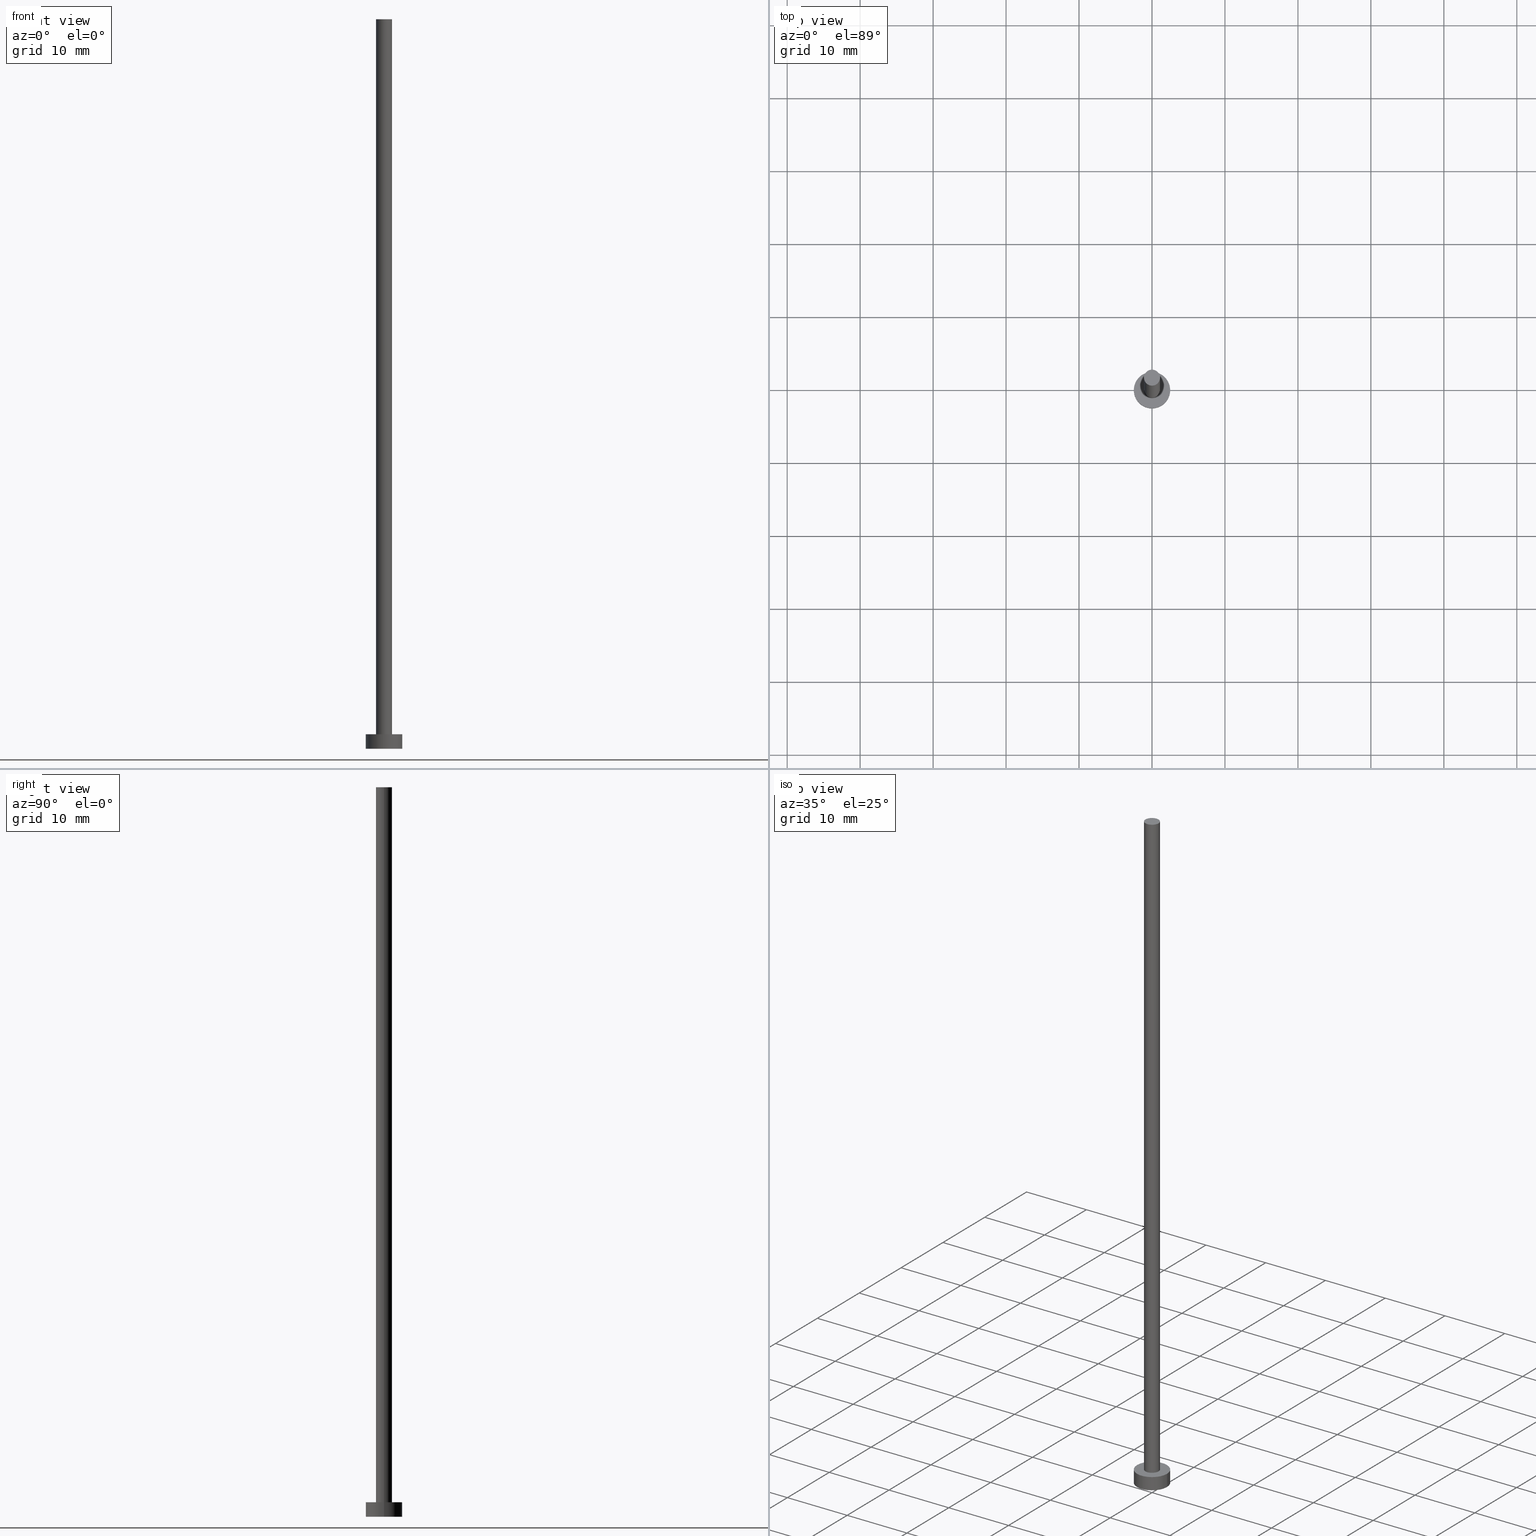
[diagram: canonical four-view strip — front | top / right | iso, engineering-drawing reading convention]
A machine part, canonical four-view strip (front | top / right | iso — engineering-drawing reading convention). The complete STEP part file that produces these views, byte-faithful:
ISO-10303-21;
HEADER;
FILE_DESCRIPTION (( 'STEP AP203' ),
    '1' );
FILE_NAME ('a7c9.STEP',
    '2023-02-13T15:58:51',
    ( '' ),
    ( '' ),
    'SwSTEP 2.0',
    'SolidWorks 2019',
    '' );
FILE_SCHEMA (( 'CONFIG_CONTROL_DESIGN' ));
ENDSEC;

DATA;
#1 = CARTESIAN_POINT ( 'NONE',  ( 0.000000000000000000, 0.000000000000000000, 100.0000000000000000 ) ) ;
#2 = EDGE_CURVE ( 'NONE', #87, #190, #108, .T. ) ;
#3 = DIRECTION ( 'NONE',  ( -0.000000000000000000, -0.000000000000000000, -1.000000000000000000 ) ) ;
#4 = FACE_OUTER_BOUND ( 'NONE', #27, .T. ) ;
#5 = PRODUCT ( 'a7c9', 'a7c9', '', ( #112 ) ) ;
#6 = DIRECTION ( 'NONE',  ( -0.000000000000000000, -0.000000000000000000, -1.000000000000000000 ) ) ;
#7 = AXIS2_PLACEMENT_3D ( 'NONE', #34, #196, #97 ) ;
#8 = LOCAL_TIME ( 16, 58, 51.00000000000000000, #144 ) ;
#9 = CIRCLE ( 'NONE', #7, 2.500000000000000000 ) ;
#10 = EDGE_LOOP ( 'NONE', ( #148, #130 ) ) ;
#11 = DIRECTION ( 'NONE',  ( 1.000000000000000000, 0.000000000000000000, 0.000000000000000000 ) ) ;
#12 = CARTESIAN_POINT ( 'NONE',  ( -2.500000000000000000, 0.000000000000000000, 2.000000000000000000 ) ) ;
#13 = VERTEX_POINT ( 'NONE', #60 ) ;
#14 = VERTEX_POINT ( 'NONE', #12 ) ;
#15 = APPLICATION_PROTOCOL_DEFINITION ( 'international standard', 'config_control_design', 1994, #38 ) ;
#16 = AXIS2_PLACEMENT_3D ( 'NONE', #44, #89, #147 ) ;
#17 = APPROVAL_ROLE ( '' ) ;
#18 = COORDINATED_UNIVERSAL_TIME_OFFSET ( 1, 0, .AHEAD. ) ;
#19 = CARTESIAN_POINT ( 'NONE',  ( 0.000000000000000000, 0.000000000000000000, 100.0000000000000000 ) ) ;
#20 = APPROVAL_ROLE ( '' ) ;
#21 = EDGE_CURVE ( 'NONE', #13, #127, #122, .T. ) ;
#22 = APPROVAL_DATE_TIME ( #182, #59 ) ;
#23 = ORIENTED_EDGE ( 'NONE', *, *, #102, .F. ) ;
#24 = CARTESIAN_POINT ( 'NONE',  ( 0.000000000000000000, 0.000000000000000000, 0.000000000000000000 ) ) ;
#25 = AXIS2_PLACEMENT_3D ( 'NONE', #1, #120, #83 ) ;
#26 =( NAMED_UNIT ( * ) SI_UNIT ( $, .STERADIAN. ) SOLID_ANGLE_UNIT ( ) );
#27 = EDGE_LOOP ( 'NONE', ( #139, #227, #45, #145 ) ) ;
#28 = CARTESIAN_POINT ( 'NONE',  ( 0.000000000000000000, 0.000000000000000000, 2.000000000000000000 ) ) ;
#29 = EDGE_CURVE ( 'NONE', #127, #190, #128, .T. ) ;
#30 = AXIS2_PLACEMENT_3D ( 'NONE', #125, #37, #11 ) ;
#31 = FACE_OUTER_BOUND ( 'NONE', #47, .T. ) ;
#32 = DESIGN_CONTEXT ( 'detailed design', #38, 'design' ) ;
#33 = ADVANCED_FACE ( 'NONE', ( #156 ), #243, .F. ) ;
#34 = CARTESIAN_POINT ( 'NONE',  ( 0.000000000000000000, 0.000000000000000000, 0.000000000000000000 ) ) ;
#35 = MANIFOLD_SOLID_BREP ( 'P�idat vysunut�m3', #216 ) ;
#36 = AXIS2_PLACEMENT_3D ( 'NONE', #19, #168, #149 ) ;
#37 = DIRECTION ( 'NONE',  ( 0.000000000000000000, 0.000000000000000000, 1.000000000000000000 ) ) ;
#38 = APPLICATION_CONTEXT ( 'configuration controlled 3d designs of mechanical parts and assemblies' ) ;
#39 = COORDINATED_UNIVERSAL_TIME_OFFSET ( 1, 0, .AHEAD. ) ;
#40 = DATE_AND_TIME ( #225, #157 ) ;
#41 = APPROVAL_ROLE ( '' ) ;
#42 = APPROVAL_DATE_TIME ( #252, #199 ) ;
#43 = CALENDAR_DATE ( 2023, 13, 2 ) ;
#44 = CARTESIAN_POINT ( 'NONE',  ( 0.000000000000000000, 0.000000000000000000, 100.0000000000000000 ) ) ;
#45 = ORIENTED_EDGE ( 'NONE', *, *, #29, .T. ) ;
#46 = PERSON_AND_ORGANIZATION_ROLE ( 'classification_officer' ) ;
#47 = EDGE_LOOP ( 'NONE', ( #129, #181, #234, #95 ) ) ;
#48 = PERSON_AND_ORGANIZATION ( #51, #58 ) ;
#49 = CYLINDRICAL_SURFACE ( 'NONE', #16, 1.100000000000000089 ) ;
#50 = DIRECTION ( 'NONE',  ( 1.000000000000000000, 0.000000000000000000, 0.000000000000000000 ) ) ;
#51 = PERSON ( 'NEUR�EN�', 'NEUR�EN�', 'NEUR�EN�', ('NEUR�EN�'), ('NEUR�EN�'), ('NEUR�EN�') ) ;
#52 = EDGE_CURVE ( 'NONE', #14, #211, #105, .T. ) ;
#53 = FACE_OUTER_BOUND ( 'NONE', #159, .T. ) ;
#54 = LOCAL_TIME ( 16, 58, 51.00000000000000000, #18 ) ;
#55 = APPROVAL ( #186, 'NEUR�EN�' ) ;
#56 = CARTESIAN_POINT ( 'NONE',  ( 0.000000000000000000, 0.000000000000000000, 2.000000000000000000 ) ) ;
#57 = DIRECTION ( 'NONE',  ( 1.000000000000000000, 0.000000000000000000, 0.000000000000000000 ) ) ;
#58 = ORGANIZATION ( 'NEUR�EN�', 'NEUR�EN�', '' ) ;
#59 = APPROVAL ( #230, 'NEUR�EN�' ) ;
#60 = CARTESIAN_POINT ( 'NONE',  ( 1.100000000000000089, 1.347111479062088503E-16, 100.0000000000000000 ) ) ;
#61 = CIRCLE ( 'NONE', #226, 2.500000000000000000 ) ;
#62 = CALENDAR_DATE ( 2023, 13, 2 ) ;
#63 = EDGE_CURVE ( 'NONE', #190, #87, #67, .T. ) ;
#64 = LOCAL_TIME ( 16, 58, 51.00000000000000000, #162 ) ;
#65 = DATE_AND_TIME ( #62, #8 ) ;
#66 = PERSON_AND_ORGANIZATION_ROLE ( 'creator' ) ;
#67 = CIRCLE ( 'NONE', #151, 1.100000000000000089 ) ;
#68 = CC_DESIGN_APPROVAL ( #59, ( #107 ) ) ;
#69 = CARTESIAN_POINT ( 'NONE',  ( 2.500000000000000000, 3.061616997868383141E-16, 2.000000000000000000 ) ) ;
#70 = DIRECTION ( 'NONE',  ( 1.000000000000000000, 0.000000000000000000, 0.000000000000000000 ) ) ;
#71 = AXIS2_PLACEMENT_3D ( 'NONE', #56, #201, #238 ) ;
#72 = EDGE_CURVE ( 'NONE', #183, #211, #61, .T. ) ;
#73 = CYLINDRICAL_SURFACE ( 'NONE', #94, 2.500000000000000000 ) ;
#74 = AXIS2_PLACEMENT_3D ( 'NONE', #77, #126, #222 ) ;
#75 = CIRCLE ( 'NONE', #98, 2.500000000000000000 ) ;
#76 = CARTESIAN_POINT ( 'NONE',  ( 0.000000000000000000, 0.000000000000000000, 2.000000000000000000 ) ) ;
#77 = CARTESIAN_POINT ( 'NONE',  ( 0.000000000000000000, 0.000000000000000000, 2.000000000000000000 ) ) ;
#78 = CC_DESIGN_DATE_AND_TIME_ASSIGNMENT ( #40, #110, ( #107 ) ) ;
#79 = CARTESIAN_POINT ( 'NONE',  ( 0.000000000000000000, 0.000000000000000000, 0.000000000000000000 ) ) ;
#80 = VECTOR ( 'NONE', #103, 1000.000000000000000 ) ;
#81 = ADVANCED_FACE ( 'NONE', ( #86, #254 ), #101, .T. ) ;
#82 = ORIENTED_EDGE ( 'NONE', *, *, #52, .F. ) ;
#83 = DIRECTION ( 'NONE',  ( 1.000000000000000000, 0.000000000000000000, -0.000000000000000000 ) ) ;
#84 = DIRECTION ( 'NONE',  ( -0.000000000000000000, -0.000000000000000000, -1.000000000000000000 ) ) ;
#85 = CARTESIAN_POINT ( 'NONE',  ( 0.000000000000000000, 0.000000000000000000, 2.000000000000000000 ) ) ;
#86 = FACE_BOUND ( 'NONE', #10, .T. ) ;
#87 = VERTEX_POINT ( 'NONE', #215 ) ;
#88 = CARTESIAN_POINT ( 'NONE',  ( -1.100000000000000089, 0.000000000000000000, 100.0000000000000000 ) ) ;
#89 = DIRECTION ( 'NONE',  ( -0.000000000000000000, -0.000000000000000000, -1.000000000000000000 ) ) ;
#90 = CARTESIAN_POINT ( 'NONE',  ( 2.500000000000000000, 3.061616997868383141E-16, 2.000000000000000000 ) ) ;
#91 = DIRECTION ( 'NONE',  ( -0.000000000000000000, -0.000000000000000000, -1.000000000000000000 ) ) ;
#92 = CC_DESIGN_DATE_AND_TIME_ASSIGNMENT ( #65, #189, ( #169 ) ) ;
#93 = AXIS2_PLACEMENT_3D ( 'NONE', #79, #241, #142 ) ;
#94 = AXIS2_PLACEMENT_3D ( 'NONE', #76, #84, #96 ) ;
#95 = ORIENTED_EDGE ( 'NONE', *, *, #102, .T. ) ;
#96 = DIRECTION ( 'NONE',  ( -1.000000000000000000, 0.000000000000000000, 0.000000000000000000 ) ) ;
#97 = DIRECTION ( 'NONE',  ( 1.000000000000000000, 0.000000000000000000, 0.000000000000000000 ) ) ;
#98 = AXIS2_PLACEMENT_3D ( 'NONE', #85, #171, #50 ) ;
#99 = LINE ( 'NONE', #173, #115 ) ;
#100 = DIRECTION ( 'NONE',  ( 0.000000000000000000, 0.000000000000000000, 1.000000000000000000 ) ) ;
#101 = PLANE ( 'NONE',  #71 ) ;
#102 = EDGE_CURVE ( 'NONE', #211, #183, #9, .T. ) ;
#103 = DIRECTION ( 'NONE',  ( -0.000000000000000000, -0.000000000000000000, -1.000000000000000000 ) ) ;
#104 = VECTOR ( 'NONE', #91, 1000.000000000000000 ) ;
#105 = LINE ( 'NONE', #179, #104 ) ;
#106 = ADVANCED_FACE ( 'NONE', ( #31 ), #170, .T. ) ;
#107 = SECURITY_CLASSIFICATION ( '', '', #193 ) ;
#108 = CIRCLE ( 'NONE', #74, 1.100000000000000089 ) ;
#109 = EDGE_LOOP ( 'NONE', ( #23, #249 ) ) ;
#110 = DATE_TIME_ROLE ( 'classification_date' ) ;
#111 = CALENDAR_DATE ( 2023, 13, 2 ) ;
#112 = MECHANICAL_CONTEXT ( 'NONE', #195, 'mechanical' ) ;
#113 = ORIENTED_EDGE ( 'NONE', *, *, #221, .T. ) ;
#114 = DATE_AND_TIME ( #167, #135 ) ;
#115 = VECTOR ( 'NONE', #6, 1000.000000000000000 ) ;
#116 = CC_DESIGN_PERSON_AND_ORGANIZATION_ASSIGNMENT ( #160, #46, ( #107 ) ) ;
#117 = DIRECTION ( 'NONE',  ( 1.000000000000000000, 0.000000000000000000, 0.000000000000000000 ) ) ;
#118 =( NAMED_UNIT ( * ) PLANE_ANGLE_UNIT ( ) SI_UNIT ( $, .RADIAN. ) );
#119 = CARTESIAN_POINT ( 'NONE',  ( 2.500000000000000000, 3.061616997868383141E-16, 0.000000000000000000 ) ) ;
#120 = DIRECTION ( 'NONE',  ( 0.000000000000000000, 0.000000000000000000, 1.000000000000000000 ) ) ;
#121 = CARTESIAN_POINT ( 'NONE',  ( 0.000000000000000000, 0.000000000000000000, 2.000000000000000000 ) ) ;
#122 = CIRCLE ( 'NONE', #207, 1.100000000000000089 ) ;
#123 = UNCERTAINTY_MEASURE_WITH_UNIT (LENGTH_MEASURE( 1.000000000000000082E-05 ), #194, 'distance_accuracy_value', 'NONE');
#124 = CARTESIAN_POINT ( 'NONE',  ( 0.000000000000000000, 0.000000000000000000, 100.0000000000000000 ) ) ;
#125 = CARTESIAN_POINT ( 'NONE',  ( 0.000000000000000000, 0.000000000000000000, 0.000000000000000000 ) ) ;
#126 = DIRECTION ( 'NONE',  ( 0.000000000000000000, 0.000000000000000000, 1.000000000000000000 ) ) ;
#127 = VERTEX_POINT ( 'NONE', #88 ) ;
#128 = LINE ( 'NONE', #206, #80 ) ;
#129 = ORIENTED_EDGE ( 'NONE', *, *, #141, .F. ) ;
#130 = ORIENTED_EDGE ( 'NONE', *, *, #2, .F. ) ;
#131 = PRODUCT_RELATED_PRODUCT_CATEGORY ( 'detail', '', ( #5 ) ) ;
#132 = CARTESIAN_POINT ( 'NONE',  ( 0.000000000000000000, 0.000000000000000000, 2.000000000000000000 ) ) ;
#133 = CC_DESIGN_PERSON_AND_ORGANIZATION_ASSIGNMENT ( #164, #146, ( #169 ) ) ;
#134 = FACE_OUTER_BOUND ( 'NONE', #191, .T. ) ;
#135 = LOCAL_TIME ( 16, 58, 51.00000000000000000, #184 ) ;
#136 = PLANE ( 'NONE',  #25 ) ;
#137 = CARTESIAN_POINT ( 'NONE',  ( -1.100000000000000089, 0.000000000000000000, 2.000000000000000000 ) ) ;
#138 = DIRECTION ( 'NONE',  ( -0.000000000000000000, -0.000000000000000000, -1.000000000000000000 ) ) ;
#139 = ORIENTED_EDGE ( 'NONE', *, *, #176, .F. ) ;
#140 = CC_DESIGN_APPROVAL ( #55, ( #223 ) ) ;
#141 = EDGE_CURVE ( 'NONE', #204, #183, #150, .T. ) ;
#142 = DIRECTION ( 'NONE',  ( 1.000000000000000000, 0.000000000000000000, -0.000000000000000000 ) ) ;
#143 = ORIENTED_EDGE ( 'NONE', *, *, #21, .T. ) ;
#144 = COORDINATED_UNIVERSAL_TIME_OFFSET ( 1, 0, .AHEAD. ) ;
#145 = ORIENTED_EDGE ( 'NONE', *, *, #63, .T. ) ;
#146 = PERSON_AND_ORGANIZATION_ROLE ( 'creator' ) ;
#147 = DIRECTION ( 'NONE',  ( -1.000000000000000000, 0.000000000000000000, 0.000000000000000000 ) ) ;
#148 = ORIENTED_EDGE ( 'NONE', *, *, #63, .F. ) ;
#149 = DIRECTION ( 'NONE',  ( -1.000000000000000000, 0.000000000000000000, 0.000000000000000000 ) ) ;
#150 = LINE ( 'NONE', #69, #236 ) ;
#151 = AXIS2_PLACEMENT_3D ( 'NONE', #132, #165, #117 ) ;
#152 = CC_DESIGN_PERSON_AND_ORGANIZATION_ASSIGNMENT ( #48, #233, ( #223 ) ) ;
#153 = FACE_OUTER_BOUND ( 'NONE', #220, .T. ) ;
#154 =( GEOMETRIC_REPRESENTATION_CONTEXT ( 3 ) GLOBAL_UNCERTAINTY_ASSIGNED_CONTEXT ( ( #123 ) ) GLOBAL_UNIT_ASSIGNED_CONTEXT ( ( #194, #118, #26 ) ) REPRESENTATION_CONTEXT ( 'NONE', 'WORKASPACE' ) );
#155 = CC_DESIGN_PERSON_AND_ORGANIZATION_ASSIGNMENT ( #224, #66, ( #223 ) ) ;
#156 = FACE_OUTER_BOUND ( 'NONE', #109, .T. ) ;
#157 = LOCAL_TIME ( 16, 58, 51.00000000000000000, #39 ) ;
#158 = ORIENTED_EDGE ( 'NONE', *, *, #141, .T. ) ;
#159 = EDGE_LOOP ( 'NONE', ( #180, #239, #192, #232 ) ) ;
#160 = PERSON_AND_ORGANIZATION ( #51, #58 ) ;
#161 = CC_DESIGN_PERSON_AND_ORGANIZATION_ASSIGNMENT ( #213, #166, ( #5 ) ) ;
#162 = COORDINATED_UNIVERSAL_TIME_OFFSET ( 1, 0, .AHEAD. ) ;
#163 = CYLINDRICAL_SURFACE ( 'NONE', #36, 1.100000000000000089 ) ;
#164 = PERSON_AND_ORGANIZATION ( #51, #58 ) ;
#165 = DIRECTION ( 'NONE',  ( 0.000000000000000000, 0.000000000000000000, 1.000000000000000000 ) ) ;
#166 = PERSON_AND_ORGANIZATION_ROLE ( 'design_owner' ) ;
#167 = CALENDAR_DATE ( 2023, 13, 2 ) ;
#168 = DIRECTION ( 'NONE',  ( -0.000000000000000000, -0.000000000000000000, -1.000000000000000000 ) ) ;
#169 = PRODUCT_DEFINITION ( 'NEZN�M�', '', #223, #32 ) ;
#170 = CYLINDRICAL_SURFACE ( 'NONE', #237, 2.500000000000000000 ) ;
#171 = DIRECTION ( 'NONE',  ( 0.000000000000000000, 0.000000000000000000, 1.000000000000000000 ) ) ;
#172 = PRODUCT_DEFINITION_SHAPE ( 'NONE', 'NONE',  #169 ) ;
#173 = CARTESIAN_POINT ( 'NONE',  ( 1.100000000000000089, 1.347111479062088503E-16, 100.0000000000000000 ) ) ;
#174 = DIRECTION ( 'NONE',  ( 1.000000000000000000, 0.000000000000000000, 0.000000000000000000 ) ) ;
#175 = CIRCLE ( 'NONE', #197, 1.100000000000000089 ) ;
#176 = EDGE_CURVE ( 'NONE', #13, #87, #99, .T. ) ;
#177 = APPROVAL_PERSON_ORGANIZATION ( #188, #59, #17 ) ;
#178 = EDGE_CURVE ( 'NONE', #127, #13, #175, .T. ) ;
#179 = CARTESIAN_POINT ( 'NONE',  ( -2.500000000000000000, 0.000000000000000000, 2.000000000000000000 ) ) ;
#180 = ORIENTED_EDGE ( 'NONE', *, *, #21, .F. ) ;
#181 = ORIENTED_EDGE ( 'NONE', *, *, #235, .F. ) ;
#182 = DATE_AND_TIME ( #43, #64 ) ;
#183 = VERTEX_POINT ( 'NONE', #119 ) ;
#184 = COORDINATED_UNIVERSAL_TIME_OFFSET ( 1, 0, .AHEAD. ) ;
#185 = DIRECTION ( 'NONE',  ( 0.000000000000000000, 0.000000000000000000, 1.000000000000000000 ) ) ;
#186 = APPROVAL_STATUS ( 'not_yet_approved' ) ;
#187 = APPROVAL_DATE_TIME ( #114, #55 ) ;
#188 = PERSON_AND_ORGANIZATION ( #51, #58 ) ;
#189 = DATE_TIME_ROLE ( 'creation_date' ) ;
#190 = VERTEX_POINT ( 'NONE', #137 ) ;
#191 = EDGE_LOOP ( 'NONE', ( #244, #143 ) ) ;
#192 = ORIENTED_EDGE ( 'NONE', *, *, #2, .T. ) ;
#193 = SECURITY_CLASSIFICATION_LEVEL ( 'unclassified' ) ;
#194 =( LENGTH_UNIT ( ) NAMED_UNIT ( * ) SI_UNIT ( .MILLI., .METRE. ) );
#195 = APPLICATION_CONTEXT ( 'configuration controlled 3d designs of mechanical parts and assemblies' ) ;
#196 = DIRECTION ( 'NONE',  ( 0.000000000000000000, 0.000000000000000000, 1.000000000000000000 ) ) ;
#197 = AXIS2_PLACEMENT_3D ( 'NONE', #124, #100, #174 ) ;
#198 = CC_DESIGN_APPROVAL ( #199, ( #169 ) ) ;
#199 = APPROVAL ( #251, 'NEUR�EN�' ) ;
#200 = DIRECTION ( 'NONE',  ( -1.000000000000000000, 0.000000000000000000, 0.000000000000000000 ) ) ;
#201 = DIRECTION ( 'NONE',  ( 0.000000000000000000, 0.000000000000000000, 1.000000000000000000 ) ) ;
#202 = EDGE_LOOP ( 'NONE', ( #229, #113 ) ) ;
#203 = CARTESIAN_POINT ( 'NONE',  ( 0.000000000000000000, 0.000000000000000000, 100.0000000000000000 ) ) ;
#204 = VERTEX_POINT ( 'NONE', #90 ) ;
#205 = ADVANCED_FACE ( 'NONE', ( #153 ), #73, .T. ) ;
#206 = CARTESIAN_POINT ( 'NONE',  ( -1.100000000000000089, 0.000000000000000000, 100.0000000000000000 ) ) ;
#207 = AXIS2_PLACEMENT_3D ( 'NONE', #203, #246, #57 ) ;
#208 = ORIENTED_EDGE ( 'NONE', *, *, #221, .F. ) ;
#209 = ADVANCED_FACE ( 'NONE', ( #53 ), #163, .T. ) ;
#210 = PERSON_AND_ORGANIZATION ( #51, #58 ) ;
#211 = VERTEX_POINT ( 'NONE', #255 ) ;
#212 = CC_DESIGN_SECURITY_CLASSIFICATION ( #107, ( #223 ) ) ;
#213 = PERSON_AND_ORGANIZATION ( #51, #58 ) ;
#214 = DIRECTION ( 'NONE',  ( 0.000000000000000000, 0.000000000000000000, 1.000000000000000000 ) ) ;
#215 = CARTESIAN_POINT ( 'NONE',  ( 1.100000000000000089, 1.347111479062088503E-16, 2.000000000000000000 ) ) ;
#216 = CLOSED_SHELL ( 'NONE', ( #209, #205, #106, #81, #33, #240, #217 ) ) ;
#217 = ADVANCED_FACE ( 'NONE', ( #134 ), #136, .T. ) ;
#218 = CIRCLE ( 'NONE', #231, 2.500000000000000000 ) ;
#219 = ADVANCED_BREP_SHAPE_REPRESENTATION ( 'a7c9', ( #35, #30 ), #154 ) ;
#220 = EDGE_LOOP ( 'NONE', ( #208, #158, #247, #82 ) ) ;
#221 = EDGE_CURVE ( 'NONE', #204, #14, #75, .T. ) ;
#222 = DIRECTION ( 'NONE',  ( 1.000000000000000000, 0.000000000000000000, 0.000000000000000000 ) ) ;
#223 = PRODUCT_DEFINITION_FORMATION_WITH_SPECIFIED_SOURCE ( 'LIBOVOLN�', '', #5, .NOT_KNOWN. ) ;
#224 = PERSON_AND_ORGANIZATION ( #51, #58 ) ;
#225 = CALENDAR_DATE ( 2023, 13, 2 ) ;
#226 = AXIS2_PLACEMENT_3D ( 'NONE', #24, #185, #253 ) ;
#227 = ORIENTED_EDGE ( 'NONE', *, *, #178, .F. ) ;
#228 = PERSON_AND_ORGANIZATION ( #51, #58 ) ;
#229 = ORIENTED_EDGE ( 'NONE', *, *, #235, .T. ) ;
#230 = APPROVAL_STATUS ( 'not_yet_approved' ) ;
#231 = AXIS2_PLACEMENT_3D ( 'NONE', #28, #214, #70 ) ;
#232 = ORIENTED_EDGE ( 'NONE', *, *, #29, .F. ) ;
#233 = PERSON_AND_ORGANIZATION_ROLE ( 'design_supplier' ) ;
#234 = ORIENTED_EDGE ( 'NONE', *, *, #52, .T. ) ;
#235 = EDGE_CURVE ( 'NONE', #14, #204, #218, .T. ) ;
#236 = VECTOR ( 'NONE', #138, 1000.000000000000000 ) ;
#237 = AXIS2_PLACEMENT_3D ( 'NONE', #121, #3, #200 ) ;
#238 = DIRECTION ( 'NONE',  ( 1.000000000000000000, 0.000000000000000000, -0.000000000000000000 ) ) ;
#239 = ORIENTED_EDGE ( 'NONE', *, *, #176, .T. ) ;
#240 = ADVANCED_FACE ( 'NONE', ( #4 ), #49, .T. ) ;
#241 = DIRECTION ( 'NONE',  ( 0.000000000000000000, 0.000000000000000000, 1.000000000000000000 ) ) ;
#242 = APPROVAL_PERSON_ORGANIZATION ( #228, #199, #20 ) ;
#243 = PLANE ( 'NONE',  #93 ) ;
#244 = ORIENTED_EDGE ( 'NONE', *, *, #178, .T. ) ;
#245 = APPLICATION_PROTOCOL_DEFINITION ( 'international standard', 'config_control_design', 1994, #195 ) ;
#246 = DIRECTION ( 'NONE',  ( 0.000000000000000000, 0.000000000000000000, 1.000000000000000000 ) ) ;
#247 = ORIENTED_EDGE ( 'NONE', *, *, #72, .T. ) ;
#248 = APPROVAL_PERSON_ORGANIZATION ( #210, #55, #41 ) ;
#249 = ORIENTED_EDGE ( 'NONE', *, *, #72, .F. ) ;
#250 = SHAPE_DEFINITION_REPRESENTATION ( #172, #219 ) ;
#251 = APPROVAL_STATUS ( 'not_yet_approved' ) ;
#252 = DATE_AND_TIME ( #111, #54 ) ;
#253 = DIRECTION ( 'NONE',  ( 1.000000000000000000, 0.000000000000000000, 0.000000000000000000 ) ) ;
#254 = FACE_OUTER_BOUND ( 'NONE', #202, .T. ) ;
#255 = CARTESIAN_POINT ( 'NONE',  ( -2.500000000000000000, 0.000000000000000000, 0.000000000000000000 ) ) ;
ENDSEC;
END-ISO-10303-21;
